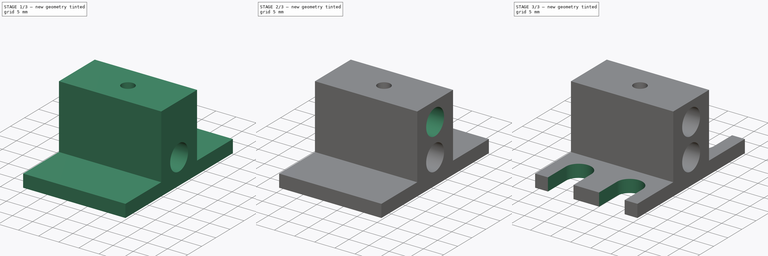
[diagram: build sequence overview — one tinted view per stage of 3, left to right]
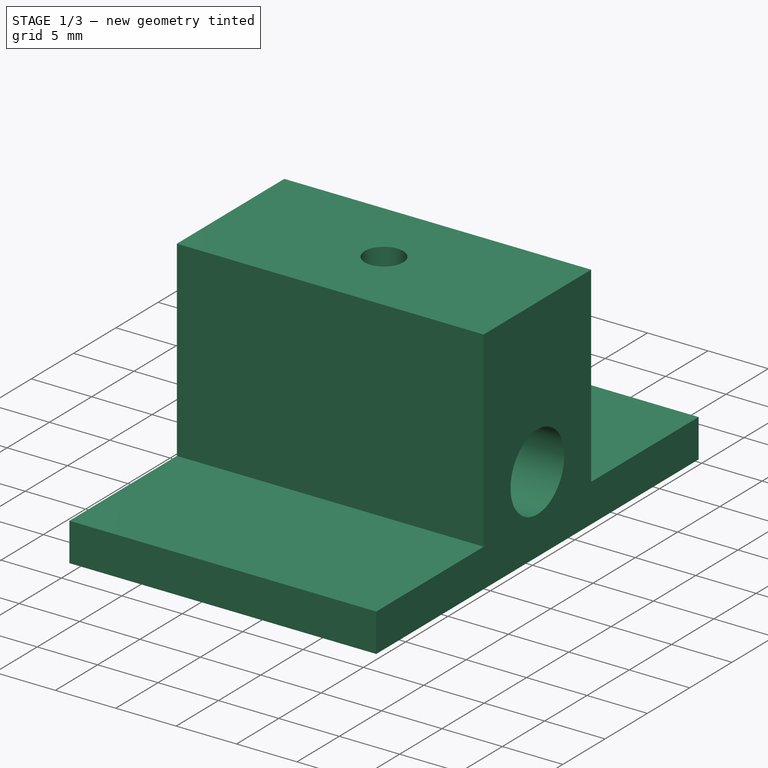
[diagram: stage 1 of 3 — iso view after this stage's code; geometry added in this stage tinted green]
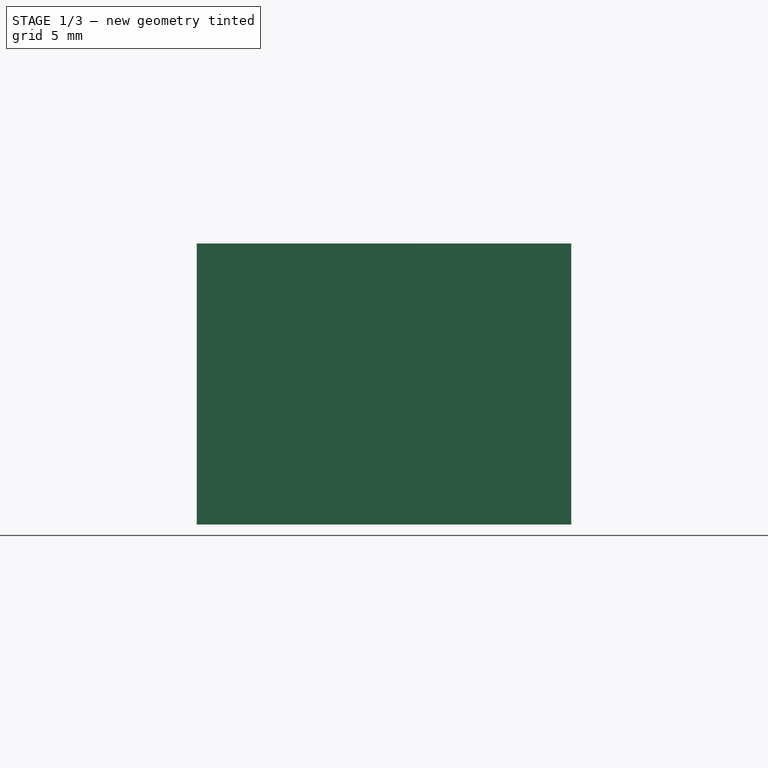
[diagram: stage 1 of 3 — front view after this stage's code; geometry added in this stage tinted green]
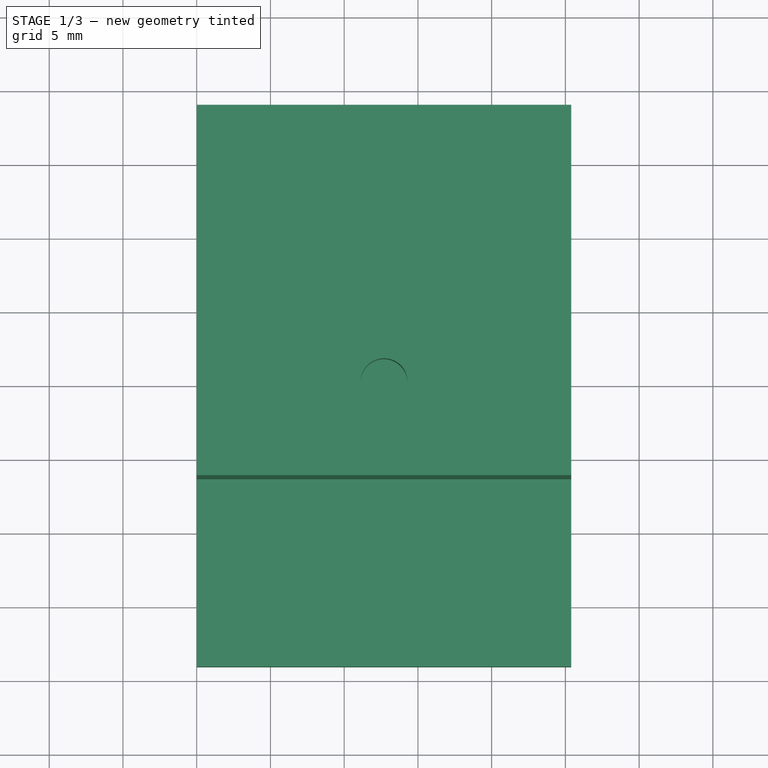
[diagram: stage 1 of 3 — top view after this stage's code; geometry added in this stage tinted green]
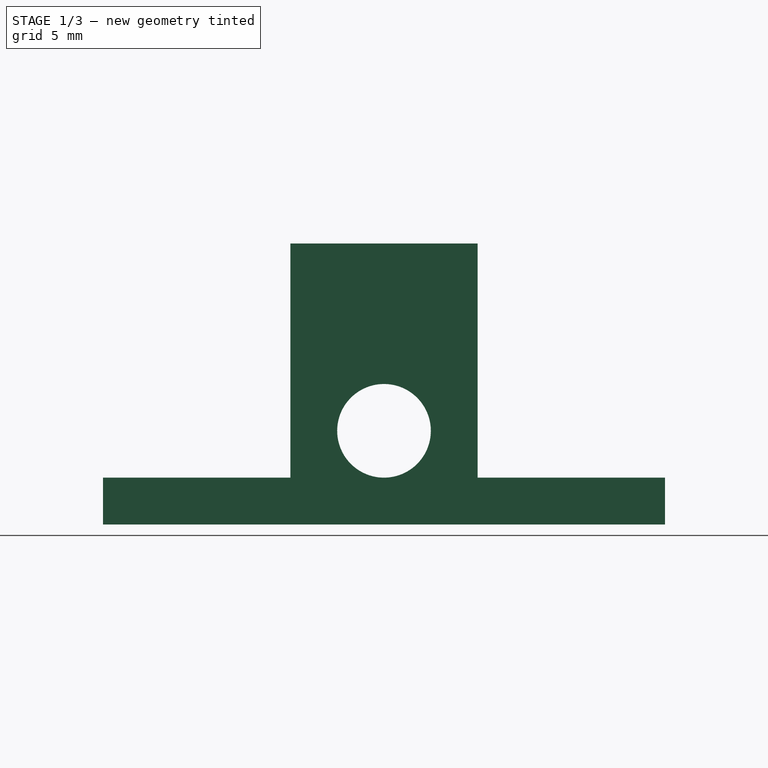
[diagram: stage 1 of 3 — right view after this stage's code; geometry added in this stage tinted green]
FCSTD DOCUMENT  (FreeCAD 0.18R16146 (Git))
Label: VdW Chuck
License: All rights reserved
LicenseURL: http://en.wikipedia.org/wiki/All_rights_reserved
objects: Sketcher::SketchObject×5, PartDesign::Pocket×2, PartDesign::Hole×2, PartDesign::Pad×1, PartDesign::Body×1
note: 16 computed .brp shape members not serialized (recipe doc carries the construction recipe); baked Part::Feature solids carry a one-line shape summary decoded from their .brp

FEATURE [Sketcher::SketchObject] Sketch
  MapMode = 5
  Placement = pos=(0,0,0) rot=(0.57735,0.57735,0.57735;2.0944rad)
  Support = -> [YZ_Plane]
  sketch-geometry (9):
    g0: LineSegment StartX=-19.05 StartY=1.61136e-09 StartZ=0 EndX=19.05 EndY=-1.61136e-09 EndZ=0
    g1: LineSegment StartX=19.05 StartY=-1.61136e-09 StartZ=0 EndX=19.05 EndY=3.175 EndZ=0
    g2: LineSegment StartX=19.05 StartY=3.175 StartZ=0 EndX=6.35 EndY=3.175 EndZ=0
    g3: LineSegment StartX=6.35 StartY=3.175 StartZ=0 EndX=6.35 EndY=19.05 EndZ=0
    g4: LineSegment StartX=6.35 StartY=19.05 StartZ=0 EndX=-6.35 EndY=19.05 EndZ=0
    g5: LineSegment StartX=-6.35 StartY=19.05 StartZ=0 EndX=-6.35 EndY=3.175 EndZ=0
    g6: LineSegment StartX=-6.35 StartY=3.175 StartZ=0 EndX=-19.05 EndY=3.175 EndZ=0
    g7: LineSegment StartX=-19.05 StartY=3.175 StartZ=0 EndX=-19.05 EndY=1.61136e-09 EndZ=0
    g8: Circle CenterX=0 CenterY=6.35 CenterZ=0 NormalX=0 NormalY=0 NormalZ=1 AngleXU=0 Radius=3.175
  constraints (25):
    c: Coincident(g0,g1)
    c: Coincident(g1,g2)
    c: Coincident(g2,g3)
    c: Coincident(g3,g4)
    c: Coincident(g4,g5)
    c: Coincident(g5,g6)
    c: Coincident(g6,g7)
    c: Coincident(g7,g0)
    c: Equal(g3,g5)
    c: Equal(g7,g1)
    c: Equal(g6,g4)
    c: Equal(g4,g2)
    c: DistanceX(g0,g0) = 38.1
    c: DistanceX(g4,g4) = 12.7
    c: DistanceY(g1,g1) = 3.175
    c: DistanceY(g3,g3) = 15.875
    c: Vertical(g3)
    c: Vertical(g5)
    c: Vertical(g7)
    c: Vertical(g1)
    c: Symmetric(g4,g3,g-2)
    c: PointOnObject(g-1,g0)
    c: Diameter(g8) = 6.35
    c: PointOnObject(g8,g-2)
    c: DistanceY(g-1,g8) = 6.35
FEATURE [PartDesign::Pad] Pad
  Length = 25.4
  Length2 = 99.9998
  Placement = pos=(0,0,0) rot=(0.57735,0.57735,0.57735;2.0944rad)
  Profile = -> Sketch
  Type = 0
FEATURE [Sketcher::SketchObject] Sketch001
  MapMode = 5
  Placement = pos=(-5.3e-15,8.4e-15,19.05) rot=(0,0,-1;1.5708rad)
  Support = -> [Pad]
  sketch-geometry (1):
    g0: Circle CenterX=0 CenterY=12.7 CenterZ=0 NormalX=0 NormalY=0 NormalZ=1 AngleXU=0 Radius=1.5875
  constraints (3):
    c: PointOnObject(g0,g-2)
    c: Diameter(g0) = 3.175
    c: DistanceY(g-1,g0) = 12.7
FEATURE [PartDesign::Pocket] Pocket
  BaseFeature = -> Pad
  Length = 4.7625
  Length2 = 99.9998
  Placement = pos=(0,0,0) rot=(0.57735,0.57735,0.57735;2.0944rad)
  Profile = -> Sketch001
  Type = 0
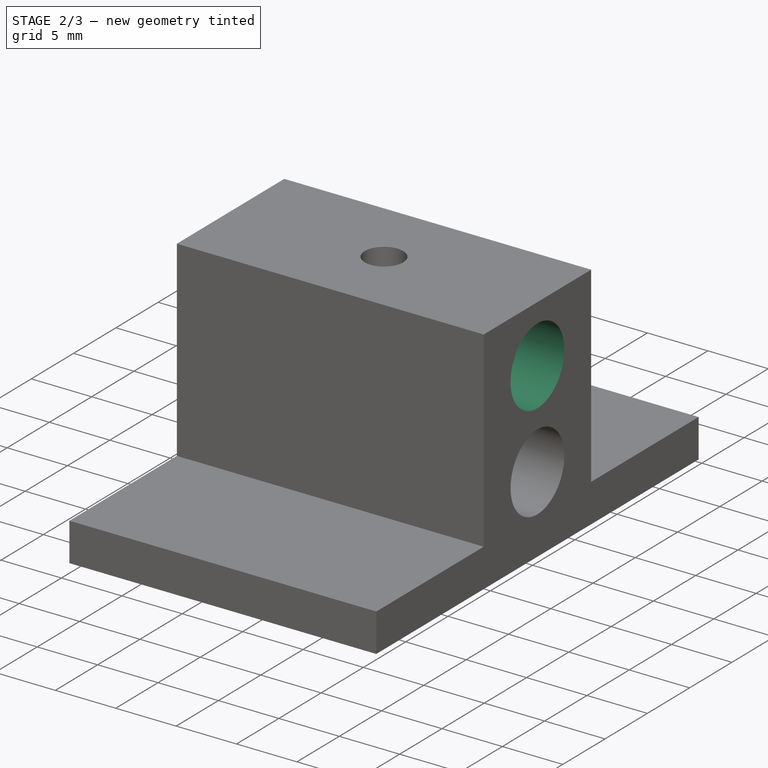
[diagram: stage 2 of 3 — iso view after this stage's code; geometry added in this stage tinted green]
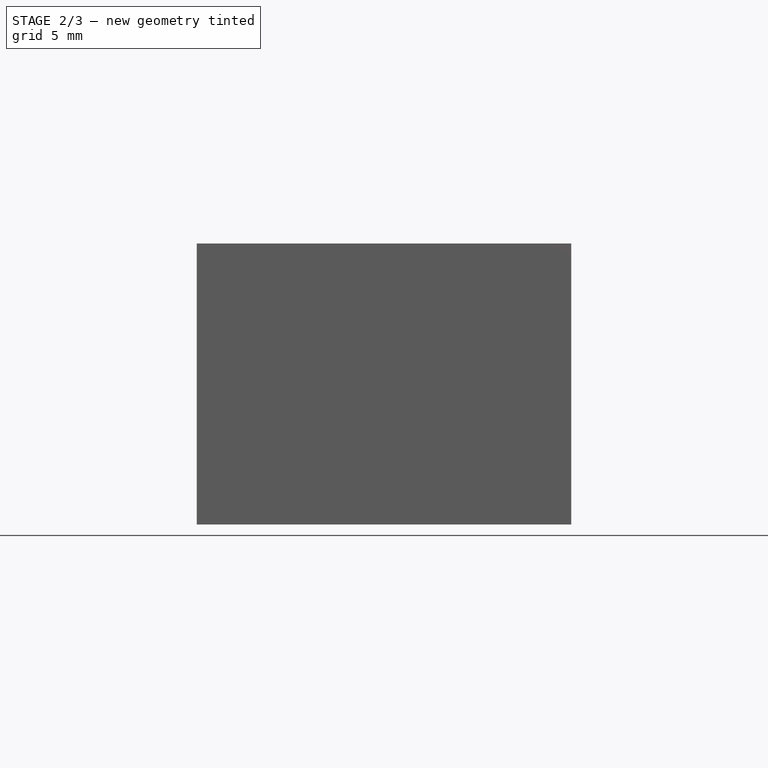
[diagram: stage 2 of 3 — front view after this stage's code; geometry added in this stage tinted green]
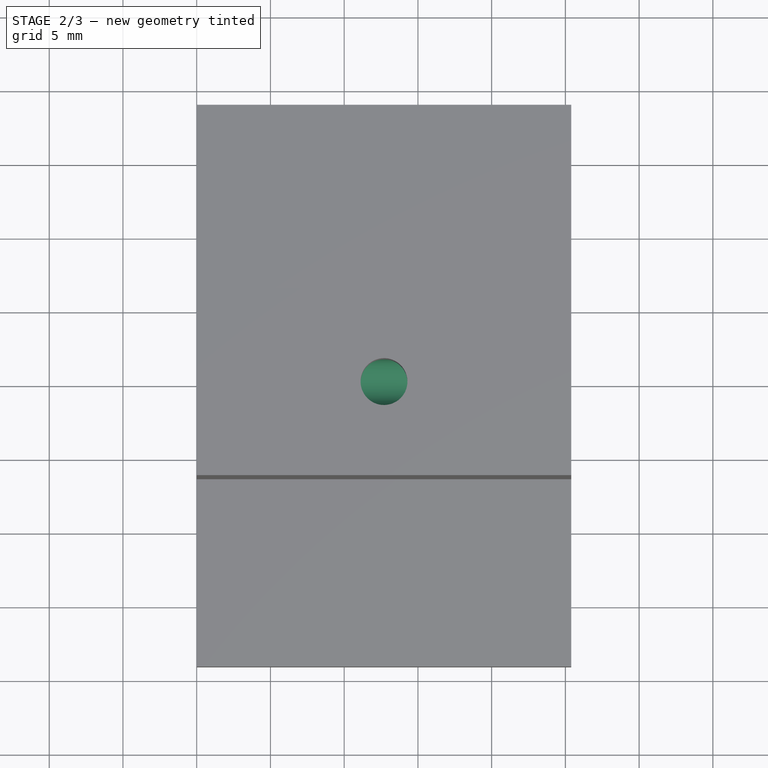
[diagram: stage 2 of 3 — top view after this stage's code; geometry added in this stage tinted green]
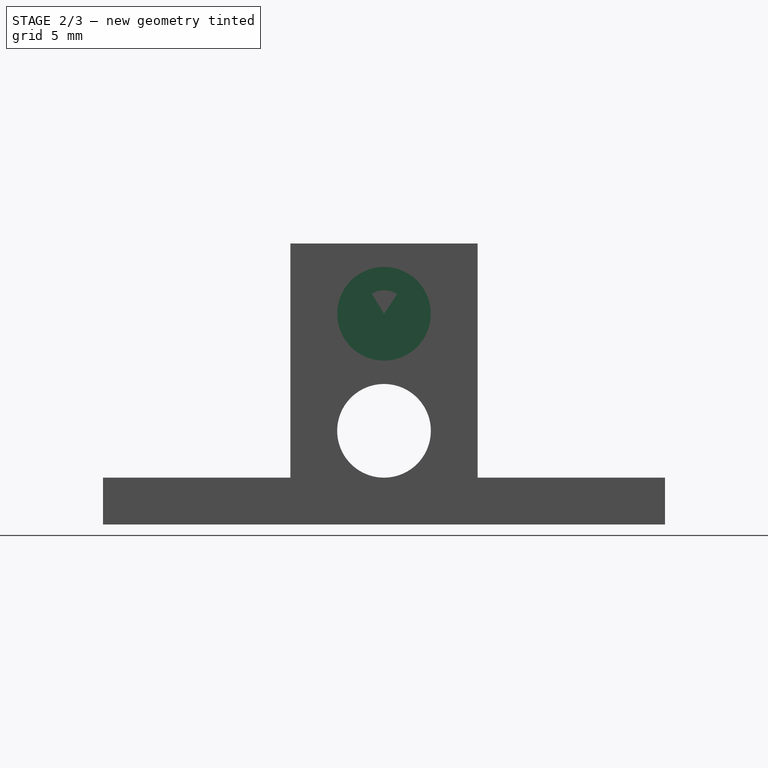
[diagram: stage 2 of 3 — right view after this stage's code; geometry added in this stage tinted green]
FEATURE [Sketcher::SketchObject] Sketch002
  MapMode = 5
  Placement = pos=(25.4,-5.6e-15,5.6e-15) rot=(0.57735,0.57735,0.57735;2.0944rad)
  Support = -> [Pocket]
  sketch-geometry (1):
    g0: Circle CenterX=0 CenterY=14.2875 CenterZ=0 NormalX=0 NormalY=0 NormalZ=1 AngleXU=0 Radius=1.5875
  constraints (3):
    c: PointOnObject(g0,g-2)
    c: Diameter(g0) = 3.175
    c: DistanceY(g-1,g0) = 14.2875
FEATURE [PartDesign::Hole] Hole
  BaseFeature = -> Pocket
  Depth = 14.2875
  DepthType = 0
  Diameter = 3.18262
  DrillPoint = 0
  DrillPointAngle = 118
  HoleCutCountersinkAngle = 90
  HoleCutDepth = 10.16
  HoleCutDiameter = 6.35
  HoleCutType = 1
  ModelActualThread = false
  Placement = pos=(0,0,0) rot=(0.57735,0.57735,0.57735;2.0944rad)
  Profile = -> Sketch002
  Tapered = false
  TaperedAngle = 90
  ThreadAngle = 0
  ThreadClass = 0
  ThreadCutOffInner = 0
  ThreadCutOffOuter = 0
  ThreadDirection = 0
  ThreadFit = 0
  ThreadPitch = 0
  ThreadSize = 0
  ThreadType = 0
  Threaded = false
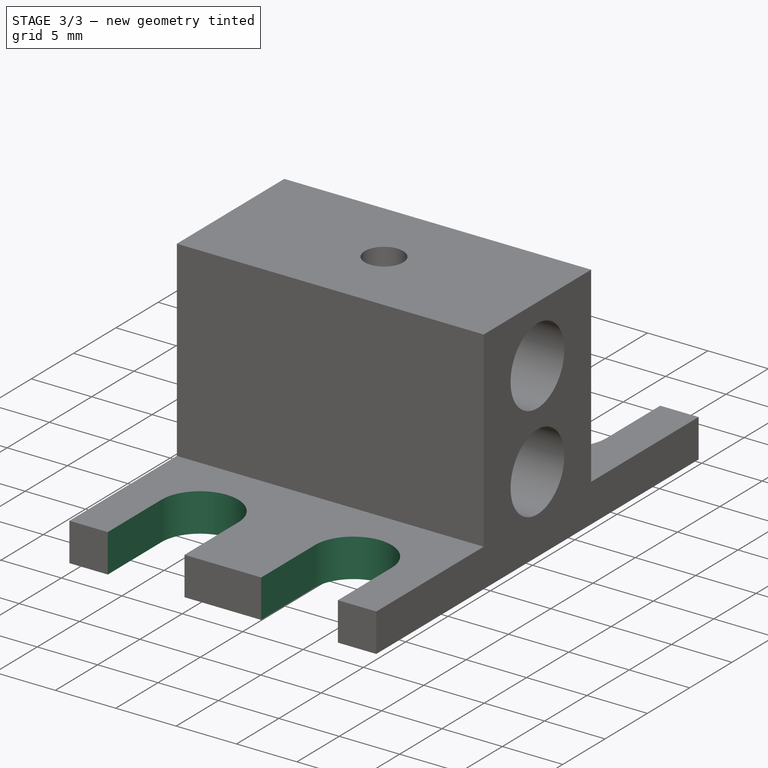
[diagram: stage 3 of 3 — iso view after this stage's code; geometry added in this stage tinted green]
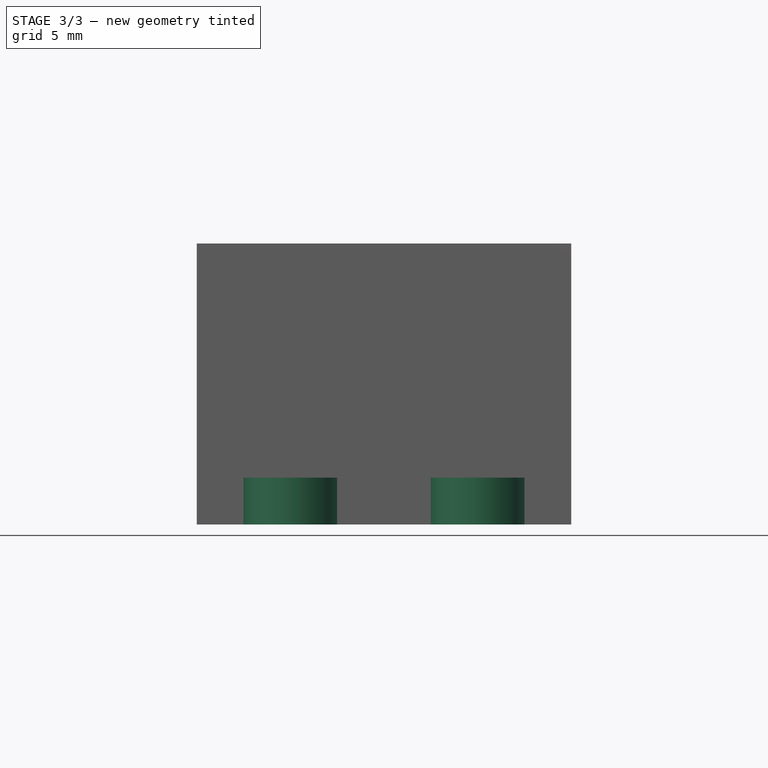
[diagram: stage 3 of 3 — front view after this stage's code; geometry added in this stage tinted green]
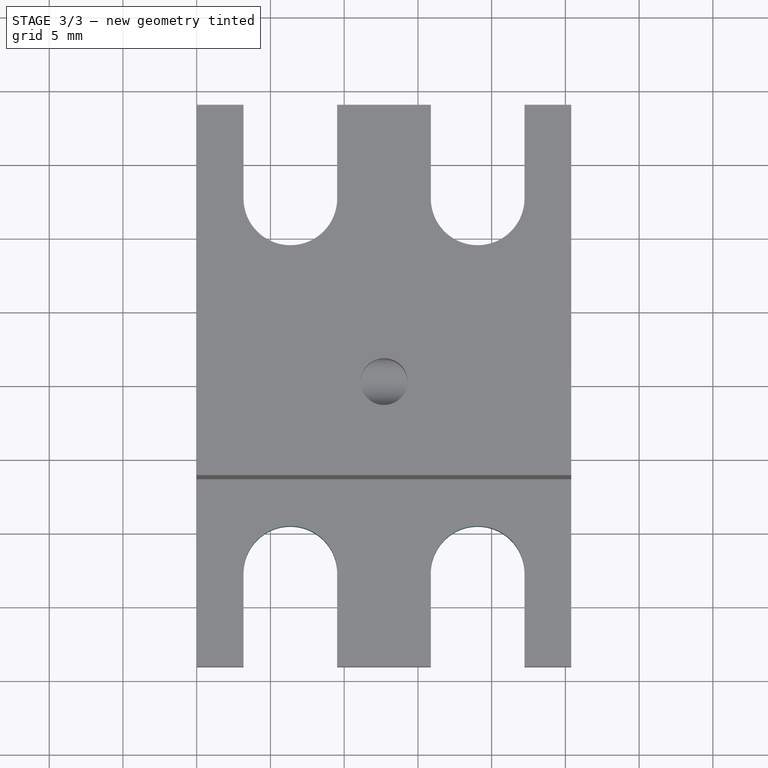
[diagram: stage 3 of 3 — top view after this stage's code; geometry added in this stage tinted green]
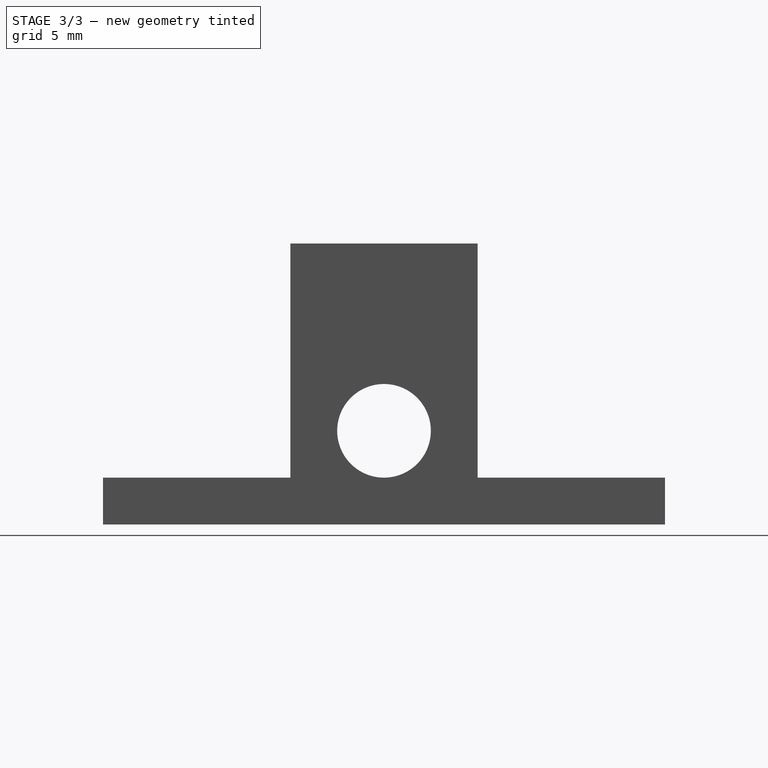
[diagram: stage 3 of 3 — right view after this stage's code; geometry added in this stage tinted green]
FEATURE [Sketcher::SketchObject] Sketch003
  MapMode = 5
  Placement = pos=(-1.6e-15,4.00175e-10,3.175) rot=(0,0,-1;1.5708rad)
  Support = -> [Hole]
  sketch-geometry (16):
    g0: LineSegment StartX=25.4 StartY=9.525 StartZ=0 EndX=12.7 EndY=9.525 EndZ=0
    g1: LineSegment StartX=12.7 StartY=3.175 StartZ=0 EndX=25.4 EndY=3.175 EndZ=0
    g2: LineSegment StartX=25.4 StartY=3.175 StartZ=0 EndX=25.4 EndY=9.525 EndZ=0
    g3: ArcOfCircle CenterX=12.7 CenterY=6.35 CenterZ=0 NormalX=0 NormalY=0 NormalZ=1 AngleXU=0 Radius=3.175 StartAngle=1.5708 EndAngle=4.71239
    g4: LineSegment StartX=25.4 StartY=22.225 StartZ=0 EndX=12.7 EndY=22.225 EndZ=0
    g5: LineSegment StartX=12.7 StartY=15.875 StartZ=0 EndX=25.4 EndY=15.875 EndZ=0
    g6: LineSegment StartX=25.4 StartY=15.875 StartZ=0 EndX=25.4 EndY=22.225 EndZ=0
    g7: LineSegment StartX=-25.4 StartY=22.225 StartZ=0 EndX=-12.7 EndY=22.225 EndZ=0
    g8: LineSegment StartX=-12.7 StartY=15.875 StartZ=0 EndX=-25.4 EndY=15.875 EndZ=0
    g9: LineSegment StartX=-25.4 StartY=15.875 StartZ=0 EndX=-25.4 EndY=22.225 EndZ=0
    g10: LineSegment StartX=-25.4 StartY=9.525 StartZ=0 EndX=-12.7 EndY=9.525 EndZ=0
    g11: LineSegment StartX=-12.7 StartY=3.175 StartZ=0 EndX=-25.4 EndY=3.175 EndZ=0
    g12: LineSegment StartX=-25.4 StartY=3.175 StartZ=0 EndX=-25.4 EndY=9.525 EndZ=0
    g13: ArcOfCircle CenterX=-12.7 CenterY=19.05 CenterZ=0 NormalX=0 NormalY=0 NormalZ=1 AngleXU=0 Radius=3.175 StartAngle=4.71239 EndAngle=7.85398
    g14: ArcOfCircle CenterX=-12.7 CenterY=6.35 CenterZ=0 NormalX=0 NormalY=0 NormalZ=1 AngleXU=0 Radius=3.175 StartAngle=4.71239 EndAngle=7.85398
    g15: ArcOfCircle CenterX=12.7 CenterY=19.05 CenterZ=0 NormalX=0 NormalY=0 NormalZ=1 AngleXU=0 Radius=3.175 StartAngle=1.5708 EndAngle=4.71239
  constraints (44):
    c: Horizontal(g0)
    c: Horizontal(g1)
    c: Coincident(g1,g2)
    c: Coincident(g2,g0)
    c: Vertical(g2)
    c: Distance(g1,g-1) = 3.175
    c: DistanceY(g2,g2) = 6.35
    c: Tangent(g1,g3) = -1.5708
    c: Tangent(g3,g0) = -1.5708
    c: Distance(g1,g-2) = 12.7
    c: DistanceX(g0,g0) = 12.7
    c: Horizontal(g4)
    c: Horizontal(g5)
    c: Coincident(g5,g6)
    c: Coincident(g6,g4)
    c: Vertical(g6)
    c: Horizontal(g7)
    c: Horizontal(g8)
    c: Coincident(g8,g9)
    c: Coincident(g9,g7)
    c: Horizontal(g10)
    c: Horizontal(g11)
    c: Coincident(g11,g12)
    c: Coincident(g12,g10)
    c: Vertical(g9)
    c: Vertical(g12)
    c: DistanceY(g9,g9) = 6.35
    c: Tangent(g13,g7) = 1.5708
    c: Tangent(g13,g8) = 1.5708
    c: Tangent(g14,g10) = 1.5708
    c: Tangent(g14,g11) = 1.5708
    c: Tangent(g15,g4) = -1.5708
    c: Tangent(g15,g5) = -1.5708
    c: DistanceY(g6,g6) = 6.35
    c: DistanceY(g12,g12) = 6.35
    c: Distance(g5,g0) = 6.35
    c: Distance(g15,g-2) = 12.7
    c: Distance(g13,g-2) = 12.7
    c: Distance(g14,g-2) = 12.7
    c: Distance(g11,g-1) = 3.175
    c: DistanceY(g10,g8) = 6.35
    c: DistanceX(g8,g8) = 12.7
    c: DistanceX(g11,g11) = 12.7
    c: DistanceX(g4,g4) = 12.7
FEATURE [PartDesign::Pocket] Pocket001
  BaseFeature = -> Hole
  Length = 5
  Length2 = 100
  Placement = pos=(0,0,0) rot=(0.57735,0.57735,0.57735;2.0944rad)
  Profile = -> Sketch003
  Type = 0
FEATURE [Sketcher::SketchObject] Sketch004
  MapMode = 5
  Placement = pos=(-2.7e-15,0,0) rot=(-0.57735,-0.57735,0.57735;2.0944rad)
  Support = -> [Pocket001]
  sketch-geometry (1):
    g0: Circle CenterX=0 CenterY=-14.2875 CenterZ=0 NormalX=0 NormalY=0 NormalZ=1 AngleXU=0 Radius=1.7272
  constraints (3):
    c: PointOnObject(g0,g-2)
    c: Diameter(g0) = 3.4544
    c: DistanceY(g0,g-1) = 14.2875
FEATURE [PartDesign::Hole] Hole001
  BaseFeature = -> Pocket001
  Depth = 8.89
  DepthType = 0
  Diameter = 3.3718
  DrillPoint = 0
  DrillPointAngle = 118
  HoleCutCountersinkAngle = 82
  HoleCutDepth = 0
  HoleCutDiameter = 4
  HoleCutType = 0
  ModelActualThread = false
  Placement = pos=(0,0,0) rot=(0.57735,0.57735,0.57735;2.0944rad)
  Profile = -> Sketch004
  Tapered = false
  TaperedAngle = 90
  ThreadAngle = 60
  ThreadClass = 0
  ThreadCutOffInner = 0.0859314
  ThreadCutOffOuter = 0.171863
  ThreadDirection = 1
  ThreadFit = 0
  ThreadPitch = 0.7938
  ThreadSize = 6
  ThreadType = 3
  Threaded = true
FEATURE [PartDesign::Body] Body
  Group = -> [Sketch,Pad,Sketch001,Pocket,Sketch002,Hole,Sketch003,Pocket001,Sketch004,Hole001]
  Origin = -> Origin
  Tip = -> Hole001
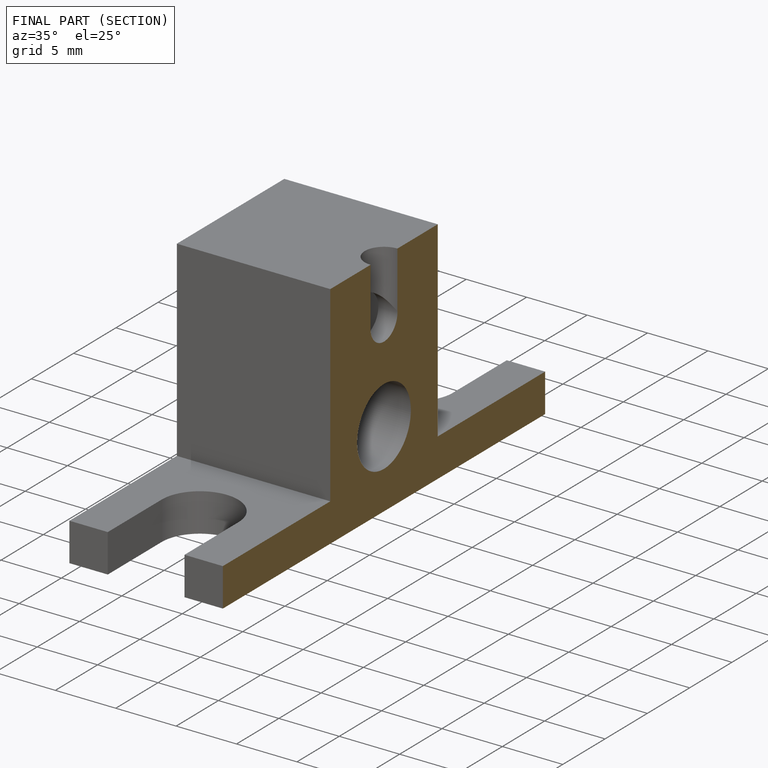
[diagram: finished part — half-section view (interior)]
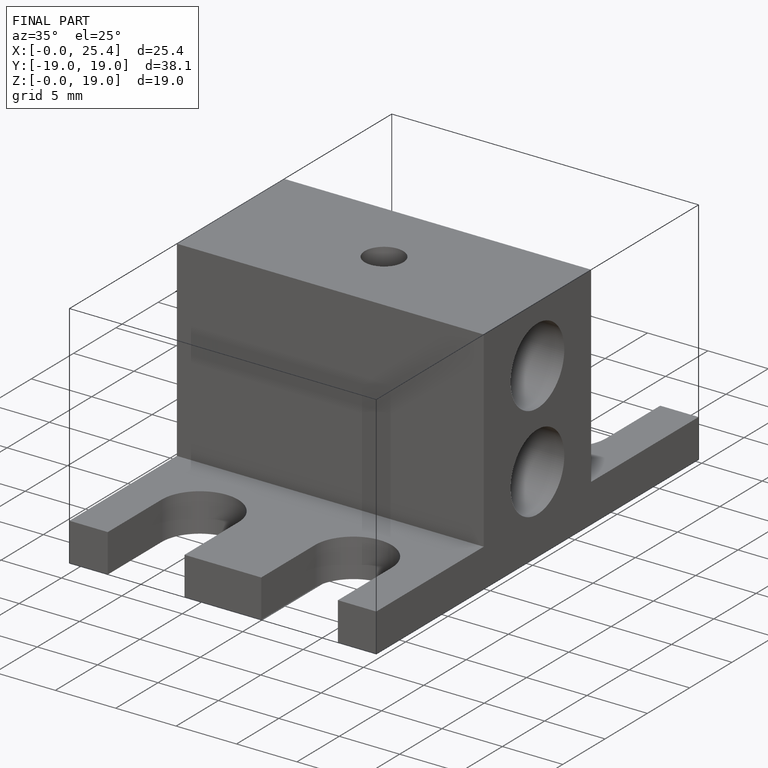
[diagram: finished part — iso view with bounding-box wireframe]
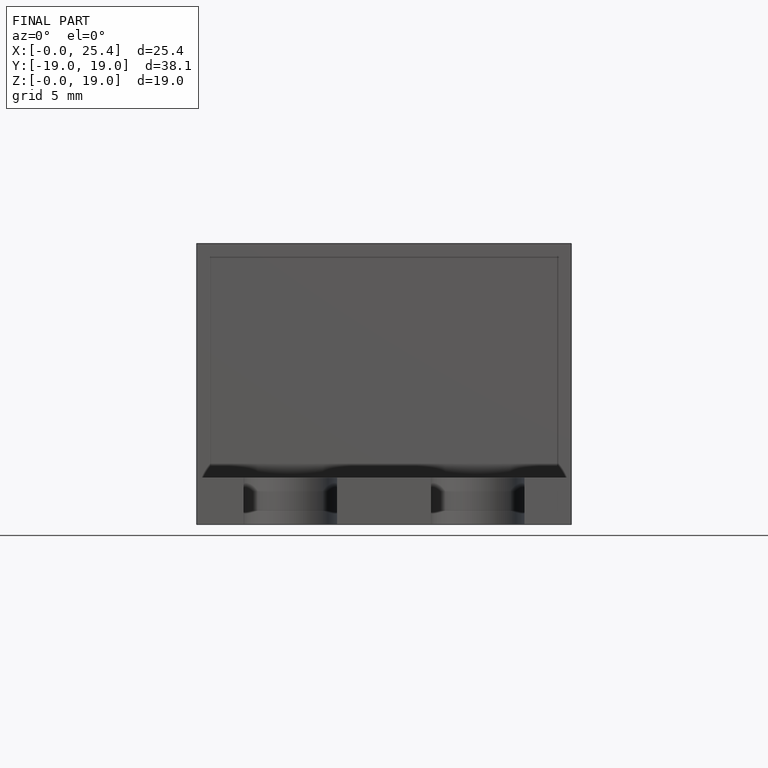
[diagram: finished part — front view with bounding-box wireframe]
